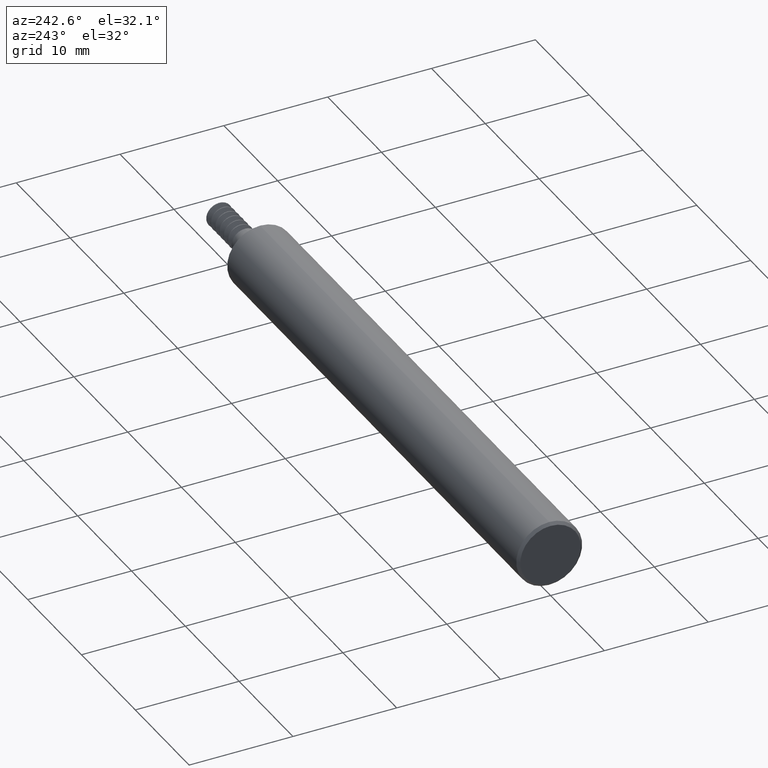
[diagram: clean part render]
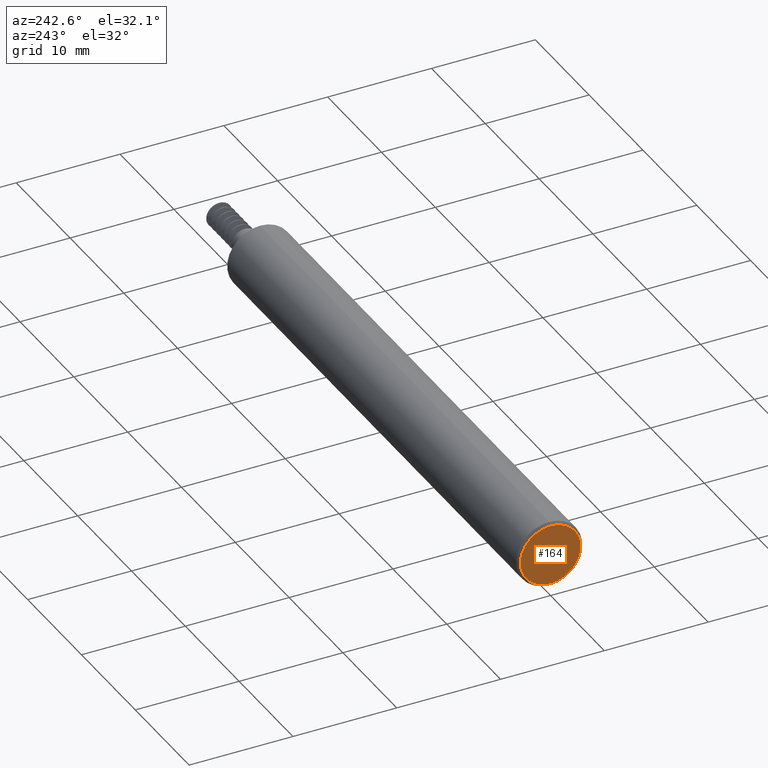
[diagram: same view with one face highlighted and labeled with its STEP entity id]
A machine part, auxiliary view. The second image highlights one B-rep face of the part: STEP entity #164.
In plain terms, the highlighted planar face has unit normal (1, 0, 0).
Its self-contained STEP definition (entity closure, byte-faithful):
#84 = DIRECTION ( 'NONE',  ( 0.0000000000000000000, 0.0000000000000000000, -1.000000000000000000 ) ) ;
#111 = DIRECTION ( 'NONE',  ( -1.000000000000000000, -0.0000000000000000000, -0.0000000000000000000 ) ) ;
#164 = ADVANCED_FACE ( 'NONE', ( #736 ), #1262, .F. ) ;
#170 = CIRCLE ( 'NONE', #1420, 0.1148500000000005489 ) ;
#264 = DIRECTION ( 'NONE',  ( 0.0000000000000000000, 0.0000000000000000000, -1.000000000000000000 ) ) ;
#298 = VERTEX_POINT ( 'NONE', #326 ) ;
#326 = CARTESIAN_POINT ( 'NONE',  ( 0.0000000000000000000, 1.467739188778106286E-17, 0.1148500000000005489 ) ) ;
#403 = CIRCLE ( 'NONE', #1616, 0.1148500000000005489 ) ;
#649 = DIRECTION ( 'NONE',  ( 1.000000000000000000, 0.0000000000000000000, 0.0000000000000000000 ) ) ;
#706 = CARTESIAN_POINT ( 'NONE',  ( 0.0000000000000000000, 0.0000000000000000000, 0.0000000000000000000 ) ) ;
#719 = EDGE_CURVE ( 'NONE', #298, #1479, #170, .T. ) ;
#736 = FACE_OUTER_BOUND ( 'NONE', #996, .T. ) ;
#938 = CARTESIAN_POINT ( 'NONE',  ( 0.0000000000000000000, 0.0000000000000000000, -0.1148500000000005489 ) ) ;
#966 = ORIENTED_EDGE ( 'NONE', *, *, #1245, .T. ) ;
#996 = EDGE_LOOP ( 'NONE', ( #966, #1387 ) ) ;
#1032 = AXIS2_PLACEMENT_3D ( 'NONE', #706, #649, #264 ) ;
#1205 = DIRECTION ( 'NONE',  ( 0.0000000000000000000, 0.0000000000000000000, -1.000000000000000000 ) ) ;
#1245 = EDGE_CURVE ( 'NONE', #1479, #298, #403, .T. ) ;
#1262 = PLANE ( 'NONE',  #1032 ) ;
#1387 = ORIENTED_EDGE ( 'NONE', *, *, #719, .T. ) ;
#1420 = AXIS2_PLACEMENT_3D ( 'NONE', #1542, #111, #84 ) ;
#1450 = CARTESIAN_POINT ( 'NONE',  ( 0.0000000000000000000, 0.0000000000000000000, 0.0000000000000000000 ) ) ;
#1479 = VERTEX_POINT ( 'NONE', #938 ) ;
#1542 = CARTESIAN_POINT ( 'NONE',  ( 0.0000000000000000000, 0.0000000000000000000, 0.0000000000000000000 ) ) ;
#1578 = DIRECTION ( 'NONE',  ( -1.000000000000000000, -0.0000000000000000000, -0.0000000000000000000 ) ) ;
#1616 = AXIS2_PLACEMENT_3D ( 'NONE', #1450, #1578, #1205 ) ;